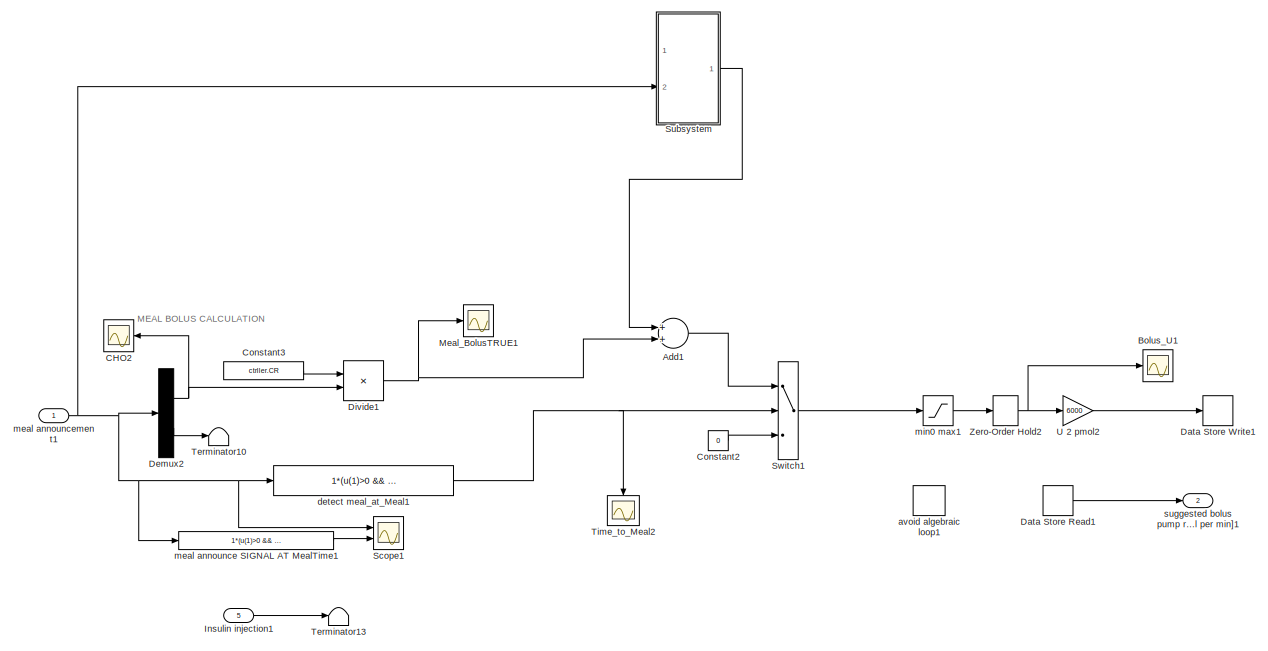
[diagram: root canvas - part 1/2, full width, middle band]
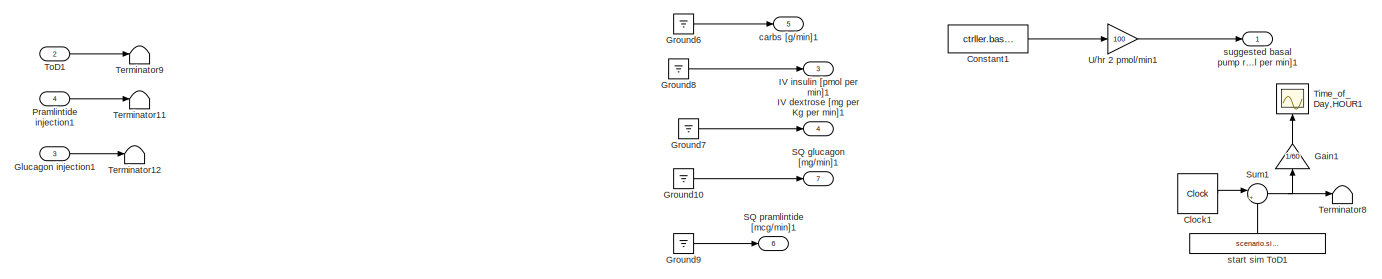
[diagram: root canvas - part 2/2, full width, bottom band]
MODEL slx_047809347742
KIND model
CONFIG AbsTol = auto
CONFIG EnableMultiTasking = off
CONFIG FixedStep = auto
CONFIG MaxStep = auto
CONFIG MinStep = auto
CONFIG RelTol = 1e-3
CONFIG SampleTimeConstraint = Unconstrained
CONFIG Solver = VariableStepAuto
CONFIG SolverName = VariableStepAuto
CONFIG StartTime = 0.0
CONFIG StopTime = 10.0
BLOCK [Sum] Add1
  InputSameDT = off
  OutDataTypeStr = Inherit: Inherit via internal rule
  Ports = [2, 1]
  SaturateOnIntegerOverflow = off
BLOCK [Scope] Bolus_U1
  Floating = off
  NumInputPorts = 1
  Ports = [1]
  ScopeSpecificationString = Simulink.scopes.TimeScopeBlockCfg('CurrentConfiguration', extmgr.ConfigurationSet(extmgr.Configuration('Core','General UI',true),extmgr.Configuration('Core','Source UI',true),extmgr.Configuration('Sources','WiredSimulink',true,'DataLoggingVariableName','ScopeData1','DataLoggingSaveFormat','StructureWithTime','DataLoggingLimitDataPoints',true,'DataLoggingDecimation','1','DataLoggingDecimateData',tr...<+1633ch>
BLOCK [Scope] CHO2
  Floating = off
  NumInputPorts = 1
  Ports = [1]
  ScopeSpecificationString = Simulink.scopes.TimeScopeBlockCfg('CurrentConfiguration', extmgr.ConfigurationSet(extmgr.Configuration('Core','General UI',true),extmgr.Configuration('Core','Source UI',true),extmgr.Configuration('Sources','WiredSimulink',true,'DataLoggingVariableName','ScopeData2','DataLoggingSaveFormat','StructureWithTime','DataLoggingLimitDataPoints',true,'DataLoggingDecimation','1','DataLoggingDecimateData',tr...<+1627ch>
BLOCK [Clock] Clock1
BLOCK [Constant] Constant1
  Value = ctrller.basal
BLOCK [Constant] Constant2
  Value = 0
BLOCK [Constant] Constant3
  Value = ctrller.CR
BLOCK [DataStoreRead] Data Store Read1
  Ports = [0, 1]
  SampleTime = 0
BLOCK [DataStoreWrite] Data Store Write1
  Ports = [1]
BLOCK [Demux] Demux2
  DisplayOption = bar
  Outputs = 2
  Ports = [1, 2]
BLOCK [Product] Divide1
  InputSameDT = off
  Inputs = /*
  OutDataTypeStr = Inherit: Inherit via internal rule
  Ports = [2, 1]
  RndMeth = Floor
  SaturateOnIntegerOverflow = off
BLOCK [Gain] Gain1
  Gain = 1/60
  OutDataTypeStr = Inherit: Inherit via internal rule
  ParamDataTypeStr = Inherit: Inherit via internal rule
  SaturateOnIntegerOverflow = off
BLOCK [Inport] Glucagon injection1
  IconDisplay = Port number
  Port = 3
BLOCK [Ground] Ground10
BLOCK [Ground] Ground6
BLOCK [Ground] Ground7
BLOCK [Ground] Ground8
BLOCK [Ground] Ground9
BLOCK [Outport] IV dextrose [mg per Kg per min]1
  IconDisplay = Port number
  Port = 4
BLOCK [Outport] IV insulin [pmol per min]1
  IconDisplay = Port number
  Port = 3
BLOCK [Inport] Insulin injection1
  IconDisplay = Port number
  Port = 5
BLOCK [Scope] Meal_BolusTRUE1
  Floating = off
  NumInputPorts = 1
  Ports = [1]
  ScopeSpecificationString = Simulink.scopes.TimeScopeBlockCfg('CurrentConfiguration', extmgr.ConfigurationSet(extmgr.Configuration('Core','General UI',true),extmgr.Configuration('Core','Source UI',true),extmgr.Configuration('Sources','WiredSimulink',true,'DataLoggingVariableName','ScopeData3','DataLoggingSaveFormat','StructureWithTime','DataLoggingLimitDataPoints',true,'DataLoggingDecimation','1','DataLoggingDecimateData',tr...<+1627ch>
BLOCK [Inport] Pramlintide injection1
  IconDisplay = Port number
  Port = 4
BLOCK [Outport] SQ glucagon [mg//min]1
  IconDisplay = Port number
  Port = 7
BLOCK [Outport] SQ pramlintide [mcg//min]1
  IconDisplay = Port number
  Port = 6
BLOCK [Scope] Scope1
  Floating = off
  NumInputPorts = 2
  Ports = [2]
  ScopeSpecificationString = Simulink.scopes.TimeScopeBlockCfg('CurrentConfiguration', extmgr.ConfigurationSet(extmgr.Configuration('Core','General UI',true),extmgr.Configuration('Core','Source UI',true),extmgr.Configuration('Sources','WiredSimulink',true,'DataLoggingVariableName','ScopeData4','DataLoggingSaveFormat','StructureWithTime','DataLoggingLimitDataPoints',true,'DataLoggingDecimation','1','DataLoggingDecimateData',tr...<+2335ch>
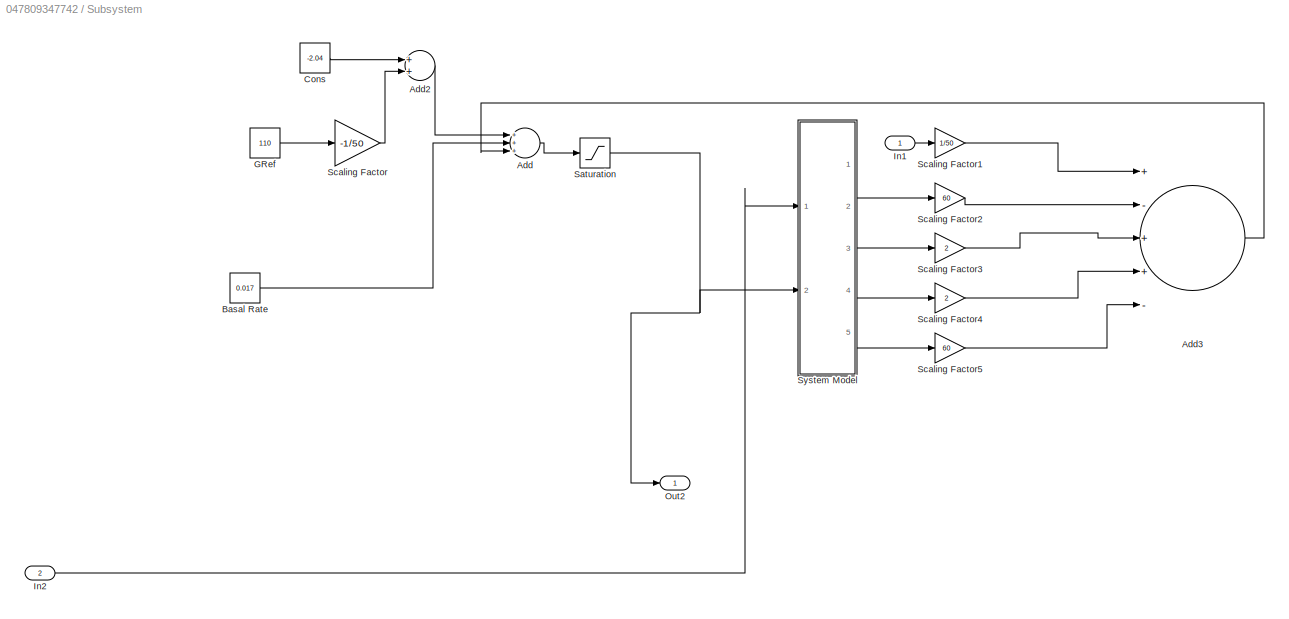
BLOCK [SubSystem] Subsystem
  Ports = [2, 1]
  RequestExecContextInheritance = off
BLOCK [Sum] Subsystem/Add
  InputSameDT = off
  Inputs = +++
  OutDataTypeStr = Inherit: Inherit via internal rule
  Ports = [3, 1]
  SaturateOnIntegerOverflow = off
BLOCK [Sum] Subsystem/Add2
  InputSameDT = off
  OutDataTypeStr = Inherit: Inherit via internal rule
  Ports = [2, 1]
  SaturateOnIntegerOverflow = off
BLOCK [Sum] Subsystem/Add3
  InputSameDT = off
  Inputs = +-++-
  OutDataTypeStr = Inherit: Inherit via internal rule
  Ports = [5, 1]
  SaturateOnIntegerOverflow = off
BLOCK [Constant] Subsystem/Basal Rate
  Value = 0.017
  VectorParams1D = off
BLOCK [Constant] Subsystem/Cons
  Value = -2.04
  VectorParams1D = off
BLOCK [Constant] Subsystem/GRef
  Value = 110
BLOCK [Inport] Subsystem/In1
  IconDisplay = Port number
BLOCK [Inport] Subsystem/In2
  IconDisplay = Port number
  Port = 2
BLOCK [Outport] Subsystem/Out2
  IconDisplay = Port number
BLOCK [Saturate] Subsystem/Saturation
  InputPortMap = u0
  LowerLimit = 0
  Ports = [1, 1]
  UpperLimit = 2
BLOCK [Gain] Subsystem/Scaling Factor
  Gain = -1/50
  OutDataTypeStr = Inherit: Inherit via internal rule
  ParamDataTypeStr = Inherit: Inherit via internal rule
  SaturateOnIntegerOverflow = off
BLOCK [Gain] Subsystem/Scaling Factor1
  Gain = 1/50
  OutDataTypeStr = Inherit: Inherit via internal rule
  ParamDataTypeStr = Inherit: Inherit via internal rule
  SaturateOnIntegerOverflow = off
BLOCK [Gain] Subsystem/Scaling Factor2
  Gain = 60
  OutDataTypeStr = Inherit: Inherit via internal rule
  ParamDataTypeStr = Inherit: Inherit via internal rule
  SaturateOnIntegerOverflow = off
BLOCK [Gain] Subsystem/Scaling Factor3
  Gain = 2
  OutDataTypeStr = Inherit: Inherit via internal rule
  ParamDataTypeStr = Inherit: Inherit via internal rule
  SaturateOnIntegerOverflow = off
BLOCK [Gain] Subsystem/Scaling Factor4
  Gain = 2
  OutDataTypeStr = Inherit: Inherit via internal rule
  ParamDataTypeStr = Inherit: Inherit via internal rule
  SaturateOnIntegerOverflow = off
BLOCK [Gain] Subsystem/Scaling Factor5
  Gain = 60
  OutDataTypeStr = Inherit: Inherit via internal rule
  ParamDataTypeStr = Inherit: Inherit via internal rule
  SaturateOnIntegerOverflow = off
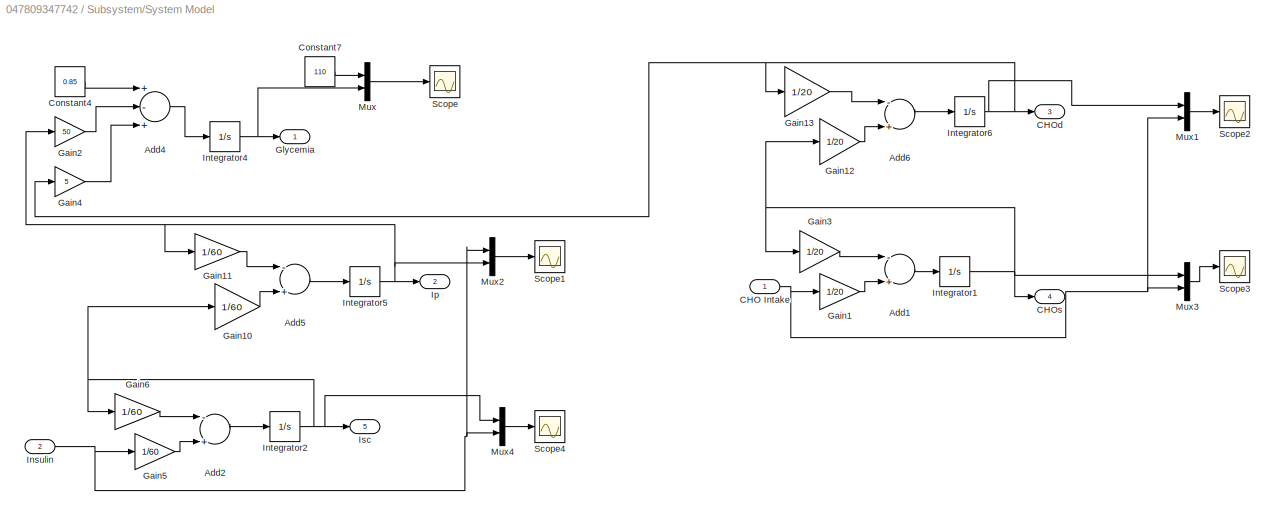
BLOCK [SubSystem] Subsystem/System Model
  Ports = [2, 5]
  RequestExecContextInheritance = off
BLOCK [Sum] Subsystem/System Model/Add1
  InputSameDT = off
  Inputs = -+
  OutDataTypeStr = Inherit: Inherit via internal rule
  Ports = [2, 1]
  SaturateOnIntegerOverflow = off
BLOCK [Sum] Subsystem/System Model/Add2
  InputSameDT = off
  Inputs = -+
  OutDataTypeStr = Inherit: Inherit via internal rule
  Ports = [2, 1]
  SaturateOnIntegerOverflow = off
BLOCK [Sum] Subsystem/System Model/Add4
  InputSameDT = off
  Inputs = +-+
  OutDataTypeStr = Inherit: Inherit via internal rule
  Ports = [3, 1]
  SaturateOnIntegerOverflow = off
BLOCK [Sum] Subsystem/System Model/Add5
  InputSameDT = off
  Inputs = -+
  OutDataTypeStr = Inherit: Inherit via internal rule
  Ports = [2, 1]
  SaturateOnIntegerOverflow = off
BLOCK [Sum] Subsystem/System Model/Add6
  InputSameDT = off
  Inputs = -+
  OutDataTypeStr = Inherit: Inherit via internal rule
  Ports = [2, 1]
  SaturateOnIntegerOverflow = off
BLOCK [Inport] Subsystem/System Model/CHO Intake
  IconDisplay = Port number
BLOCK [Outport] Subsystem/System Model/CHOd
  IconDisplay = Port number
  Port = 3
BLOCK [Outport] Subsystem/System Model/CHOs
  IconDisplay = Port number
  Port = 4
BLOCK [Constant] Subsystem/System Model/Constant4
  Value = 0.85
  VectorParams1D = off
BLOCK [Constant] Subsystem/System Model/Constant7
  Value = 110
  VectorParams1D = off
BLOCK [Gain] Subsystem/System Model/Gain1
  Gain = 1/20
  OutDataTypeStr = Inherit: Inherit via internal rule
  ParamDataTypeStr = Inherit: Inherit via internal rule
  SaturateOnIntegerOverflow = off
BLOCK [Gain] Subsystem/System Model/Gain10
  Gain = 1/60
  OutDataTypeStr = Inherit: Inherit via internal rule
  ParamDataTypeStr = Inherit: Inherit via internal rule
  SaturateOnIntegerOverflow = off
BLOCK [Gain] Subsystem/System Model/Gain11
  Gain = 1/60
  OutDataTypeStr = Inherit: Inherit via internal rule
  ParamDataTypeStr = Inherit: Inherit via internal rule
  SaturateOnIntegerOverflow = off
BLOCK [Gain] Subsystem/System Model/Gain12
  Gain = 1/20
  OutDataTypeStr = Inherit: Inherit via internal rule
  ParamDataTypeStr = Inherit: Inherit via internal rule
  SaturateOnIntegerOverflow = off
BLOCK [Gain] Subsystem/System Model/Gain13
  Gain = 1/20
  OutDataTypeStr = Inherit: Inherit via internal rule
  ParamDataTypeStr = Inherit: Inherit via internal rule
  SaturateOnIntegerOverflow = off
BLOCK [Gain] Subsystem/System Model/Gain2
  Gain = 50
  OutDataTypeStr = Inherit: Inherit via internal rule
  ParamDataTypeStr = Inherit: Inherit via internal rule
  SaturateOnIntegerOverflow = off
BLOCK [Gain] Subsystem/System Model/Gain3
  Gain = 1/20
  OutDataTypeStr = Inherit: Inherit via internal rule
  ParamDataTypeStr = Inherit: Inherit via internal rule
  SaturateOnIntegerOverflow = off
BLOCK [Gain] Subsystem/System Model/Gain4
  Gain = 5
  OutDataTypeStr = Inherit: Inherit via internal rule
  ParamDataTypeStr = Inherit: Inherit via internal rule
  SaturateOnIntegerOverflow = off
BLOCK [Gain] Subsystem/System Model/Gain5
  Gain = 1/60
  OutDataTypeStr = Inherit: Inherit via internal rule
  ParamDataTypeStr = Inherit: Inherit via internal rule
  SaturateOnIntegerOverflow = off
BLOCK [Gain] Subsystem/System Model/Gain6
  Gain = 1/60
  OutDataTypeStr = Inherit: Inherit via internal rule
  ParamDataTypeStr = Inherit: Inherit via internal rule
  SaturateOnIntegerOverflow = off
BLOCK [Outport] Subsystem/System Model/Glycemia
  IconDisplay = Port number
BLOCK [Inport] Subsystem/System Model/Insulin
  IconDisplay = Port number
  Port = 2
BLOCK [Integrator] Subsystem/System Model/Integrator1
  Ports = [1, 1]
  ZeroCross = off
BLOCK [Integrator] Subsystem/System Model/Integrator2
  InitialCondition = 0.017
  Ports = [1, 1]
  ZeroCross = off
BLOCK [Integrator] Subsystem/System Model/Integrator4
  InitialCondition = 110
  Ports = [1, 1]
  ZeroCross = off
BLOCK [Integrator] Subsystem/System Model/Integrator5
  InitialCondition = 0.017
  Ports = [1, 1]
  ZeroCross = off
BLOCK [Integrator] Subsystem/System Model/Integrator6
  Ports = [1, 1]
  ZeroCross = off
BLOCK [Outport] Subsystem/System Model/Ip
  IconDisplay = Port number
  Port = 2
BLOCK [Outport] Subsystem/System Model/Isc
  IconDisplay = Port number
  Port = 5
BLOCK [Mux] Subsystem/System Model/Mux
  DisplayOption = bar
  Inputs = 2
  Ports = [2, 1]
BLOCK [Mux] Subsystem/System Model/Mux1
  DisplayOption = bar
  Inputs = 2
  Ports = [2, 1]
BLOCK [Mux] Subsystem/System Model/Mux2
  DisplayOption = bar
  Inputs = 2
  Ports = [2, 1]
BLOCK [Mux] Subsystem/System Model/Mux3
  DisplayOption = bar
  Inputs = 2
  Ports = [2, 1]
BLOCK [Mux] Subsystem/System Model/Mux4
  DisplayOption = bar
  Inputs = 2
  Ports = [2, 1]
BLOCK [Scope] Subsystem/System Model/Scope
  Floating = off
  NumInputPorts = 1
  Ports = [1]
  ScopeSpecificationString = Simulink.scopes.TimeScopeBlockCfg('CurrentConfiguration', extmgr.ConfigurationSet(extmgr.Configuration('Core','General UI',true),extmgr.Configuration('Core','Source UI',true),extmgr.Configuration('Sources','WiredSimulink',true,'DataLoggingVariableName','ScopeData4'),extmgr.Configuration('Visuals','Time Domain',true,'SerializedDisplays',{struct('MinYLimReal','84.493','MaxYLimReal','339.563','YLabel...<+1430ch>
BLOCK [Scope] Subsystem/System Model/Scope1
  Floating = off
  NumInputPorts = 1
  Ports = [1]
  ScopeSpecificationString = Simulink.scopes.TimeScopeBlockCfg('CurrentConfiguration', extmgr.ConfigurationSet(extmgr.Configuration('Core','General UI',true),extmgr.Configuration('Core','Source UI',true),extmgr.Configuration('Sources','WiredSimulink',true,'DataLoggingVariableName','ScopeData5'),extmgr.Configuration('Visuals','Time Domain',true,'SerializedDisplays',{struct('MinYLimReal','-0.00262','MaxYLimReal','0.02357','YLab...<+1494ch>
BLOCK [Scope] Subsystem/System Model/Scope2
  Floating = off
  NumInputPorts = 1
  Ports = [1]
  ScopeSpecificationString = Simulink.scopes.TimeScopeBlockCfg('CurrentConfiguration', extmgr.ConfigurationSet(extmgr.Configuration('Core','General UI',true),extmgr.Configuration('Core','Source UI',true),extmgr.Configuration('Sources','WiredSimulink',true,'DataLoggingVariableName','ScopeData2'),extmgr.Configuration('Visuals','Time Domain',true,'SerializedDisplays',{struct('MinYLimReal','-1.00000','MaxYLimReal','1.00000','YLab...<+1408ch>
BLOCK [Scope] Subsystem/System Model/Scope3
  Floating = off
  NumInputPorts = 1
  Ports = [1]
  ScopeSpecificationString = Simulink.scopes.TimeScopeBlockCfg('CurrentConfiguration', extmgr.ConfigurationSet(extmgr.Configuration('Core','General UI',true),extmgr.Configuration('Core','Source UI',true),extmgr.Configuration('Sources','WiredSimulink',true,'DataLoggingVariableName','ScopeData3'),extmgr.Configuration('Visuals','Time Domain',true,'SerializedDisplays',{struct('MinYLimReal','-1.00000','MaxYLimReal','1.00000','YLab...<+1408ch>
BLOCK [Scope] Subsystem/System Model/Scope4
  Floating = off
  NumInputPorts = 1
  Ports = [1]
  ScopeSpecificationString = Simulink.scopes.TimeScopeBlockCfg('CurrentConfiguration', extmgr.ConfigurationSet(extmgr.Configuration('Core','General UI',true),extmgr.Configuration('Core','Source UI',true),extmgr.Configuration('Sources','WiredSimulink',true,'DataLoggingVariableName','ScopeData4'),extmgr.Configuration('Visuals','Time Domain',true,'SerializedDisplays',{struct('MinYLimReal','-0.00262','MaxYLimReal','0.02357','YLab...<+1405ch>
BLOCK [Sum] Sum1
  IconShape = round
  InputSameDT = off
  Inputs = |++
  OutDataTypeStr = Inherit: Inherit via internal rule
  Ports = [2, 1]
  SaturateOnIntegerOverflow = off
BLOCK [Switch] Switch1
  Criteria = u2 > Threshold
  InputSameDT = off
  SaturateOnIntegerOverflow = off
BLOCK [Terminator] Terminator10
BLOCK [Terminator] Terminator11
BLOCK [Terminator] Terminator12
BLOCK [Terminator] Terminator13
BLOCK [Terminator] Terminator8
BLOCK [Terminator] Terminator9
BLOCK [Scope] Time_of_Day,HOUR1
  Floating = off
  NumInputPorts = 1
  Ports = [1]
  ScopeSpecificationString = Simulink.scopes.TimeScopeBlockCfg('CurrentConfiguration', extmgr.ConfigurationSet(extmgr.Configuration('Core','General UI',true),extmgr.Configuration('Core','Source UI',true),extmgr.Configuration('Sources','WiredSimulink',true,'DataLoggingVariableName','ScopeData5','DataLoggingSaveFormat','StructureWithTime','DataLoggingLimitDataPoints',true,'DataLoggingDecimation','1','DataLoggingDecimateData',tr...<+1635ch>
BLOCK [Scope] Time_to_Meal2
  Floating = off
  NumInputPorts = 1
  Ports = [1]
  ScopeSpecificationString = Simulink.scopes.TimeScopeBlockCfg('CurrentConfiguration', extmgr.ConfigurationSet(extmgr.Configuration('Core','General UI',true),extmgr.Configuration('Core','Source UI',true),extmgr.Configuration('Sources','WiredSimulink',true,'DataLoggingVariableName','ScopeData6','DataLoggingSaveFormat','StructureWithTime','DataLoggingLimitDataPoints',true,'DataLoggingDecimation','1','DataLoggingDecimateData',tr...<+911ch>
BLOCK [Inport] ToD1
  IconDisplay = Port number
  Port = 2
BLOCK [Gain] U 2 pmol2
  Gain = 6000
  OutDataTypeStr = Inherit: Inherit via internal rule
  ParamDataTypeStr = Inherit: Inherit via internal rule
  SaturateOnIntegerOverflow = off
BLOCK [Gain] U//hr 2 pmol//min1
  Gain = 100
  OutDataTypeStr = Inherit: Inherit via internal rule
  ParamDataTypeStr = Inherit: Inherit via internal rule
  SaturateOnIntegerOverflow = off
BLOCK [ZeroOrderHold] Zero-Order Hold2
BLOCK [DataStoreMemory] avoid algebraic loop1
  ReadBeforeWriteMsg = warning
  ShowAdditionalParam = off
  WriteAfterReadMsg = warning
  WriteAfterWriteMsg = warning
BLOCK [Outport] carbs [g//min]1
  IconDisplay = Port number
  Port = 5
BLOCK [Fcn] detect meal_at_Meal1
  Expr = 1*(u(1)>0 && abs(u(2))<0.5)
BLOCK [Fcn] meal announce SIGNAL AT MealTime1
  Expr = 1*(u(1)>0 && u(2)<0.5)
  SampleTime = 1
BLOCK [Inport] meal announcement1
  IconDisplay = Port number
BLOCK [Saturate] min0 max1
  InputPortMap = u0
  LowerLimit = 0
  Ports = [1, 1]
  UpperLimit = 100
BLOCK [Constant] start sim ToD1
  Value = scenario.simToD
BLOCK [Outport] suggested basal pump rate [pmol per min]1
  IconDisplay = Port number
BLOCK [Outport] suggested bolus pump rate [pmol per min]1
  IconDisplay = Port number
  Port = 2
ANNOTATION (root): MEAL BOLUS CALCULATION
LINE Add1:1 -> Switch1:1
LINE Clock1:1 -> Sum1:1
LINE Constant1:1 -> U//hr 2 pmol//min1:1
LINE Constant2:1 -> Switch1:3
LINE Constant3:1 -> Divide1:1
LINE Data Store Read1:1 -> suggested bolus pump rate [pmol per min]1:1
NET Demux2:1 -> CHO2:1, Divide1:2
LINE Demux2:2 -> Terminator10:1
NET Divide1:1 -> Add1:2, Meal_BolusTRUE1:1
LINE Gain1:1 -> Time_of_Day,HOUR1:1
LINE Glucagon injection1:1 -> Terminator12:1
LINE Ground10:1 -> SQ glucagon [mg//min]1:1
LINE Ground6:1 -> carbs [g//min]1:1
LINE Ground7:1 -> IV dextrose [mg per Kg per min]1:1
LINE Ground8:1 -> IV insulin [pmol per min]1:1
LINE Ground9:1 -> SQ pramlintide [mcg//min]1:1
LINE Insulin injection1:1 -> Terminator13:1
LINE Pramlintide injection1:1 -> Terminator11:1
LINE Subsystem/Add2:1 -> Subsystem/Add:1
LINE Subsystem/Add3:1 -> Subsystem/Add:3
LINE Subsystem/Add:1 -> Subsystem/Saturation:1
LINE Subsystem/Basal Rate:1 -> Subsystem/Add:2
LINE Subsystem/Cons:1 -> Subsystem/Add2:1
LINE Subsystem/GRef:1 -> Subsystem/Scaling Factor:1
LINE Subsystem/In1:1 -> Subsystem/Scaling Factor1:1
LINE Subsystem/In2:1 -> Subsystem/System Model:1
NET Subsystem/Saturation:1 -> Subsystem/Out2:1, Subsystem/System Model:2
LINE Subsystem/Scaling Factor1:1 -> Subsystem/Add3:1
LINE Subsystem/Scaling Factor2:1 -> Subsystem/Add3:2
LINE Subsystem/Scaling Factor3:1 -> Subsystem/Add3:3
LINE Subsystem/Scaling Factor4:1 -> Subsystem/Add3:4
LINE Subsystem/Scaling Factor5:1 -> Subsystem/Add3:5
LINE Subsystem/Scaling Factor:1 -> Subsystem/Add2:2
LINE Subsystem/System Model/Add1:1 -> Subsystem/System Model/Integrator1:1
LINE Subsystem/System Model/Add2:1 -> Subsystem/System Model/Integrator2:1
LINE Subsystem/System Model/Add4:1 -> Subsystem/System Model/Integrator4:1
LINE Subsystem/System Model/Add5:1 -> Subsystem/System Model/Integrator5:1
LINE Subsystem/System Model/Add6:1 -> Subsystem/System Model/Integrator6:1
NET Subsystem/System Model/CHO Intake:1 -> Subsystem/System Model/Gain1:1, Subsystem/System Model/Mux1:2, Subsystem/System Model/Mux3:2
LINE Subsystem/System Model/Constant4:1 -> Subsystem/System Model/Add4:1
LINE Subsystem/System Model/Constant7:1 -> Subsystem/System Model/Mux:1
LINE Subsystem/System Model/Gain10:1 -> Subsystem/System Model/Add5:2
LINE Subsystem/System Model/Gain11:1 -> Subsystem/System Model/Add5:1
LINE Subsystem/System Model/Gain12:1 -> Subsystem/System Model/Add6:2
LINE Subsystem/System Model/Gain13:1 -> Subsystem/System Model/Add6:1
LINE Subsystem/System Model/Gain1:1 -> Subsystem/System Model/Add1:2
LINE Subsystem/System Model/Gain2:1 -> Subsystem/System Model/Add4:2
LINE Subsystem/System Model/Gain3:1 -> Subsystem/System Model/Add1:1
LINE Subsystem/System Model/Gain4:1 -> Subsystem/System Model/Add4:3
LINE Subsystem/System Model/Gain5:1 -> Subsystem/System Model/Add2:2
LINE Subsystem/System Model/Gain6:1 -> Subsystem/System Model/Add2:1
NET Subsystem/System Model/Insulin:1 -> Subsystem/System Model/Gain5:1, Subsystem/System Model/Mux2:1, Subsystem/System Model/Mux4:2
NET Subsystem/System Model/Integrator1:1 -> Subsystem/System Model/CHOs:1, Subsystem/System Model/Gain12:1, Subsystem/System Model/Gain3:1, Subsystem/System Model/Mux3:1
NET Subsystem/System Model/Integrator2:1 -> Subsystem/System Model/Gain10:1, Subsystem/System Model/Gain6:1, Subsystem/System Model/Isc:1, Subsystem/System Model/Mux4:1
NET Subsystem/System Model/Integrator4:1 -> Subsystem/System Model/Glycemia:1, Subsystem/System Model/Mux:2
NET Subsystem/System Model/Integrator5:1 -> Subsystem/System Model/Gain11:1, Subsystem/System Model/Gain2:1, Subsystem/System Model/Ip:1, Subsystem/System Model/Mux2:2
NET Subsystem/System Model/Integrator6:1 -> Subsystem/System Model/CHOd:1, Subsystem/System Model/Gain13:1, Subsystem/System Model/Gain4:1, Subsystem/System Model/Mux1:1
LINE Subsystem/System Model/Mux1:1 -> Subsystem/System Model/Scope2:1
LINE Subsystem/System Model/Mux2:1 -> Subsystem/System Model/Scope1:1
LINE Subsystem/System Model/Mux3:1 -> Subsystem/System Model/Scope3:1
LINE Subsystem/System Model/Mux4:1 -> Subsystem/System Model/Scope4:1
LINE Subsystem/System Model/Mux:1 -> Subsystem/System Model/Scope:1
LINE Subsystem/System Model:2 -> Subsystem/Scaling Factor2:1
LINE Subsystem/System Model:3 -> Subsystem/Scaling Factor3:1
LINE Subsystem/System Model:4 -> Subsystem/Scaling Factor4:1
LINE Subsystem/System Model:5 -> Subsystem/Scaling Factor5:1
LINE Subsystem:1 -> Add1:1
NET Sum1:1 -> Gain1:1, Terminator8:1
LINE Switch1:1 -> min0 max1:1
LINE ToD1:1 -> Terminator9:1
LINE U 2 pmol2:1 -> Data Store Write1:1
LINE U//hr 2 pmol//min1:1 -> suggested basal pump rate [pmol per min]1:1
NET Zero-Order Hold2:1 -> Bolus_U1:1, U 2 pmol2:1
NET detect meal_at_Meal1:1 -> Switch1:2, Time_to_Meal2:1
LINE meal announce SIGNAL AT MealTime1:1 -> Scope1:2
NET meal announcement1:1 -> Demux2:1, Scope1:1, Subsystem:2, detect meal_at_Meal1:1, meal announce SIGNAL AT MealTime1:1
LINE min0 max1:1 -> Zero-Order Hold2:1
LINE start sim ToD1:1 -> Sum1:2
note: NET lines group one-source signal fan-out (src -> all destinations, sorted); 1:1 wires keep LINE
